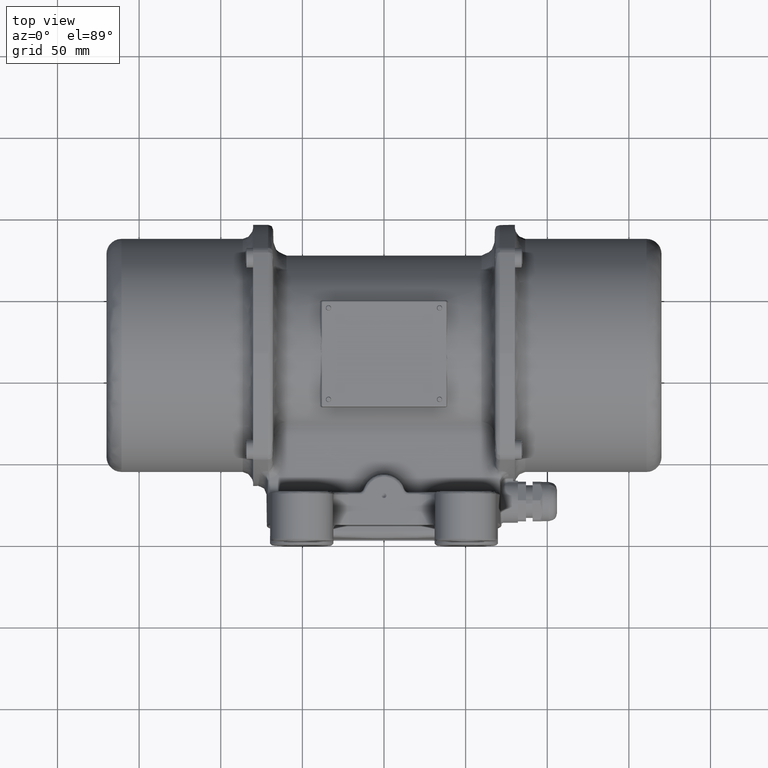
[diagram: clean part render]
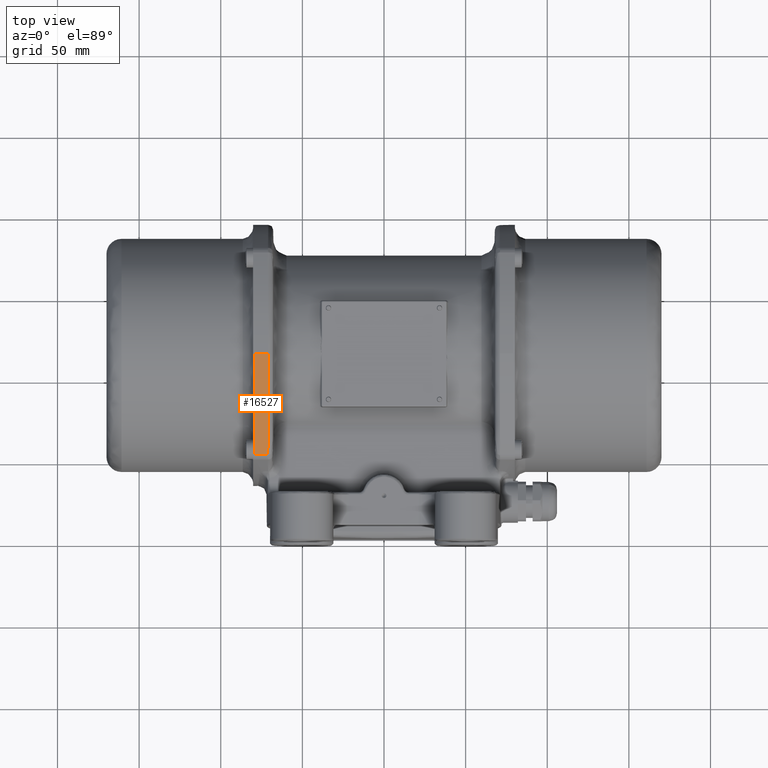
[diagram: same view with one face highlighted and labeled with its STEP entity id]
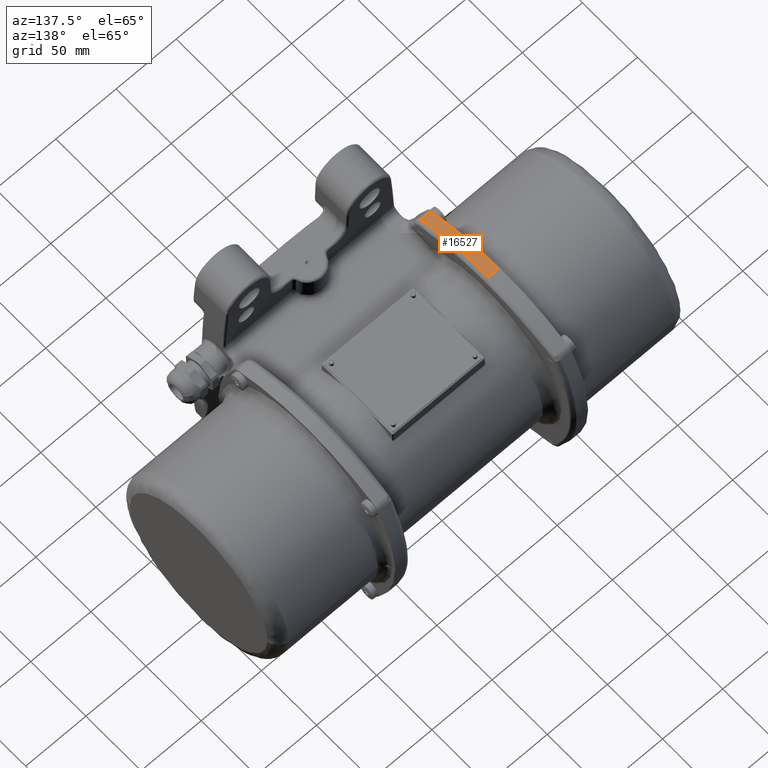
[diagram: same view with one face highlighted and labeled with its STEP entity id]
A machine part, top view. The second image highlights one B-rep face of the part: STEP entity #16527.
A second angle (auxiliary view) of the same face is appended — the face is thin or edge-on in the first view.
In plain terms, the highlighted cylindrical surface (partial cylindrical patch) has radius 134.5 mm, axis along (1, 0, 0).
Its self-contained STEP definition (entity closure, byte-faithful):
#2687 = CARTESIAN_POINT ( 'NONE',  ( -79.00000000000000000, 53.08854716773500100, 64.90360969500969200 ) ) ;
#6272 = DIRECTION ( 'NONE',  ( -1.000000000000000000, -1.504632769052529900E-035, -1.925929944387235000E-034 ) ) ;
#8127 = CARTESIAN_POINT ( 'NONE',  ( -79.00000000000000000, 115.0000000000000000, -54.50000000000000000 ) ) ;
#8660 = CARTESIAN_POINT ( 'NONE',  ( -70.94145714159952800, 89.76626286524390300, 77.61860839076905400 ) ) ;
#16527 = ADVANCED_FACE ( 'NONE', ( #49013 ), #108969, .T. ) ;
#25615 = LINE ( 'NONE', #50572, #138694 ) ;
#29460 = DIRECTION ( 'NONE',  ( 1.000000000000000000, 1.504632769052529900E-035, 1.925929944387235000E-034 ) ) ;
#30859 = CARTESIAN_POINT ( 'NONE',  ( -70.95596132120161300, 85.79743960533068000, 76.79844603611414300 ) ) ;
#36848 = VERTEX_POINT ( 'NONE', #2687 ) ;
#41294 = CARTESIAN_POINT ( 'NONE',  ( -90.00000000000000000, 115.0000000000000000, -54.50000000000000000 ) ) ;
#42171 = VERTEX_POINT ( 'NONE', #123464 ) ;
#42208 = CARTESIAN_POINT ( 'NONE',  ( -70.96122672418034900, 84.48391189990098800, 76.49934134550196100 ) ) ;
#43170 = CARTESIAN_POINT ( 'NONE',  ( -71.07982323715270900, 62.79928969360104700, 69.57262492495493700 ) ) ;
#47029 = EDGE_CURVE ( 'NONE', #42171, #112652, #118525, .T. ) ;
#48202 = CARTESIAN_POINT ( 'NONE',  ( -90.00000000000000000, 53.08854716773500100, 64.90360969500969200 ) ) ;
#49013 = FACE_OUTER_BOUND ( 'NONE', #50239, .T. ) ;
#49562 = VECTOR ( 'NONE', #6272, 1000.000000000000000 ) ;
#50239 = EDGE_LOOP ( 'NONE', ( #123548, #128170, #136457, #86592 ) ) ;
#50572 = CARTESIAN_POINT ( 'NONE',  ( -90.00000000000000000, 115.0000000000000000, 80.00000000000001400 ) ) ;
#54515 = CARTESIAN_POINT ( 'NONE',  ( -79.00000000000000000, 115.0000000000000000, 80.00000000000001400 ) ) ;
#55033 = CARTESIAN_POINT ( 'NONE',  ( -70.92867178036864600, 93.74703827548162800, 78.33762384781499600 ) ) ;
#65369 = DIRECTION ( 'NONE',  ( 0.0000000000000000000, 0.0000000000000000000, 1.000000000000000000 ) ) ;
#75780 = CARTESIAN_POINT ( 'NONE',  ( -70.89875218139251000, 115.0000000000000000, 80.00000000687029500 ) ) ;
#76275 = CARTESIAN_POINT ( 'NONE',  ( -70.90447848165300100, 104.3656827180525000, 79.68531468127115100 ) ) ;
#76844 = CARTESIAN_POINT ( 'NONE',  ( -71.15591171404700800, 53.08854716773490200, 64.90360969500959200 ) ) ;
#86592 = ORIENTED_EDGE ( 'NONE', *, *, #47029, .F. ) ;
#93819 = LINE ( 'NONE', #48202, #49562 ) ;
#97574 = DIRECTION ( 'NONE',  ( 0.0000000000000000000, 0.0000000000000000000, 1.000000000000000000 ) ) ;
#98426 = DIRECTION ( 'NONE',  ( 1.000000000000000000, 1.504632769052529900E-035, 1.925929944387235000E-034 ) ) ;
#99945 = CARTESIAN_POINT ( 'NONE',  ( -70.94607786581562400, 88.43803684277588700, 77.35800536310624400 ) ) ;
#102707 = EDGE_CURVE ( 'NONE', #138080, #36848, #106892, .T. ) ;
#105700 = AXIS2_PLACEMENT_3D ( 'NONE', #8127, #98426, #65369 ) ;
#106892 = CIRCLE ( 'NONE', #105700, 134.5000000000000000 ) ;
#108969 = CYLINDRICAL_SURFACE ( 'NONE', #121183, 134.5000000000000000 ) ;
#109379 = CARTESIAN_POINT ( 'NONE',  ( -71.01642895897491300, 72.82934880713600000, 73.33022565195972200 ) ) ;
#110343 = CARTESIAN_POINT ( 'NONE',  ( -70.92155368639464500, 96.40308679843607800, 78.73502348362639200 ) ) ;
#112652 = VERTEX_POINT ( 'NONE', #76844 ) ;
#118525 = B_SPLINE_CURVE_WITH_KNOTS ( 'NONE', 3,
 ( #75780, #145373, #76275, #110343, #55033, #8660, #99945, #30859, #42208, #133047, #109379, #43170, #122211, #134036 ),
 .UNSPECIFIED., .F., .F.,
 ( 4, 2, 2, 2, 2, 2, 4 ),
 ( 0.0000000000000000000, 0.2495765150811067900, 0.3746470959009225400, 0.4371823863108313400, 0.4997176767207385200, 0.7498588383603684800, 1.000000000000000000 ),
 .UNSPECIFIED. ) ;
#121183 = AXIS2_PLACEMENT_3D ( 'NONE', #41294, #29460, #97574 ) ;
#122211 = CARTESIAN_POINT ( 'NONE',  ( -71.11590479829791900, 57.88959588608683000, 67.39298084577205800 ) ) ;
#123464 = CARTESIAN_POINT ( 'NONE',  ( -70.89875218139251000, 115.0000000000000000, 80.00000000687029500 ) ) ;
#123548 = ORIENTED_EDGE ( 'NONE', *, *, #129093, .F. ) ;
#128170 = ORIENTED_EDGE ( 'NONE', *, *, #102707, .T. ) ;
#129093 = EDGE_CURVE ( 'NONE', #138080, #42171, #25615, .T. ) ;
#133047 = CARTESIAN_POINT ( 'NONE',  ( -70.98911848792842200, 77.94978262709901200, 74.90817766599731400 ) ) ;
#133501 = EDGE_CURVE ( 'NONE', #112652, #36848, #93819, .T. ) ;
#134036 = CARTESIAN_POINT ( 'NONE',  ( -71.15591171404700800, 53.08854716773490200, 64.90360969500959200 ) ) ;
#136457 = ORIENTED_EDGE ( 'NONE', *, *, #133501, .F. ) ;
#138080 = VERTEX_POINT ( 'NONE', #54515 ) ;
#138694 = VECTOR ( 'NONE', #141909, 1000.000000000000000 ) ;
#141909 = DIRECTION ( 'NONE',  ( 1.000000000000000000, 1.504632769052529900E-035, 1.925929944387235000E-034 ) ) ;
#145373 = CARTESIAN_POINT ( 'NONE',  ( -70.89875219800130400, 109.6786202292617200, 80.00000506697240600 ) ) ;